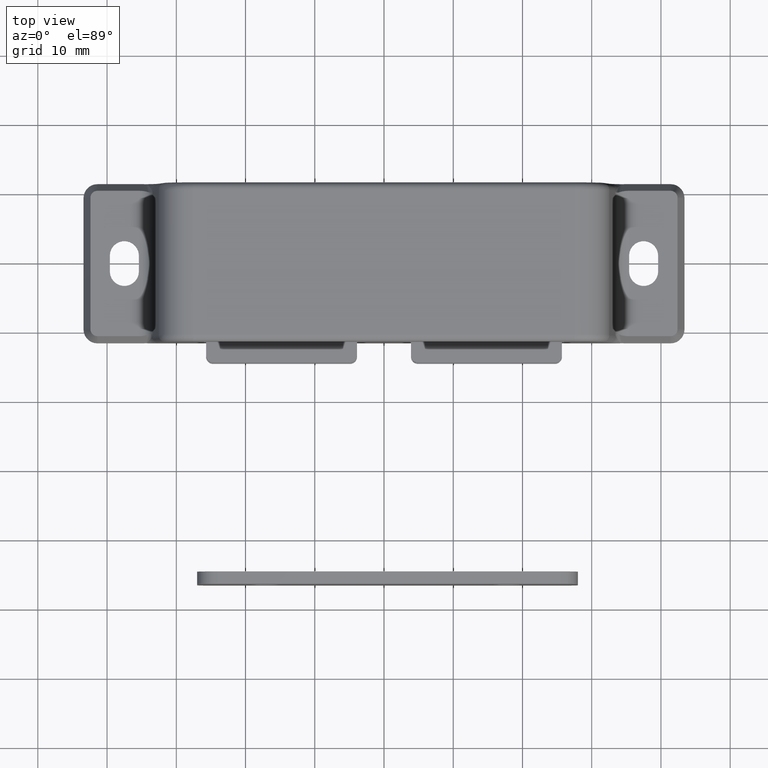
[diagram: clean part render]
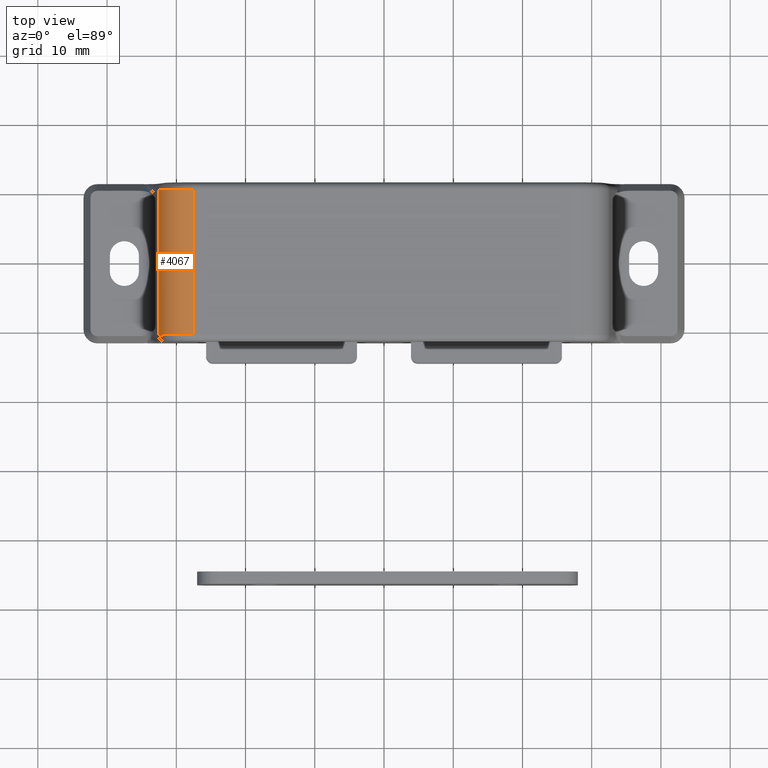
[diagram: same view with one face highlighted and labeled with its STEP entity id]
A machine part, top view. The second image highlights one B-rep face of the part: STEP entity #4067.
In plain terms, the highlighted cylindrical surface (edge-blend (fillet) strip) has radius 5 mm, axis along (0, 1, 0).
Its self-contained STEP definition (entity closure, byte-faithful):
#59=CYLINDRICAL_SURFACE('',#4335,5.);
#198=CIRCLE('',#4333,5.);
#200=CIRCLE('',#4336,5.);
#365=FACE_OUTER_BOUND('',#606,.T.);
#606=EDGE_LOOP('',(#2925,#2926,#2927,#2928));
#937=LINE('',#6295,#1373);
#938=LINE('',#6304,#1374);
#1373=VECTOR('',#4883,21.);
#1374=VECTOR('',#4896,21.);
#1797=VERTEX_POINT('',#6290);
#1798=VERTEX_POINT('',#6293);
#1799=VERTEX_POINT('',#6297);
#1800=VERTEX_POINT('',#6302);
#2230=EDGE_CURVE('',#1797,#1798,#937,.T.);
#2232=EDGE_CURVE('',#1799,#1798,#198,.T.);
#2234=EDGE_CURVE('',#1797,#1800,#200,.T.);
#2235=EDGE_CURVE('',#1799,#1800,#938,.T.);
#2925=ORIENTED_EDGE('',*,*,#2234,.F.);
#2926=ORIENTED_EDGE('',*,*,#2230,.T.);
#2927=ORIENTED_EDGE('',*,*,#2232,.F.);
#2928=ORIENTED_EDGE('',*,*,#2235,.T.);
#4067=ADVANCED_FACE('',(#365),#59,.T.);
#4333=AXIS2_PLACEMENT_3D('',#6299,#4888,#4889);
#4335=AXIS2_PLACEMENT_3D('',#6301,#4892,#4893);
#4336=AXIS2_PLACEMENT_3D('',#6303,#4894,#4895);
#4883=DIRECTION('',(0.,-1.,0.));
#4888=DIRECTION('center_axis',(0.,-1.,0.));
#4889=DIRECTION('ref_axis',(-0.662620048214059,0.,0.748955720790487));
#4892=DIRECTION('center_axis',(0.,1.,0.));
#4893=DIRECTION('ref_axis',(-0.662620048214059,0.,0.748955720790487));
#4894=DIRECTION('center_axis',(0.,1.,0.));
#4895=DIRECTION('ref_axis',(-0.662620048214059,0.,0.748955720790487));
#4896=DIRECTION('',(0.,1.,0.));
#6290=CARTESIAN_POINT('',(-32.5391044354106,10.5,11.209346717048));
#6293=CARTESIAN_POINT('',(-32.5391044354106,-10.5,11.209346717048));
#6295=CARTESIAN_POINT('',(-32.5391044354106,0.,11.209346717048));
#6297=CARTESIAN_POINT('',(-27.5763736772067,-10.5,15.6));
#6299=CARTESIAN_POINT('Origin',(-27.5763736772067,-10.5,10.6));
#6301=CARTESIAN_POINT('Origin',(-27.5763736772067,0.,10.6));
#6302=CARTESIAN_POINT('',(-27.5763736772067,10.5,15.6));
#6303=CARTESIAN_POINT('Origin',(-27.5763736772067,10.5,10.6));
#6304=CARTESIAN_POINT('',(-27.5763736772067,0.,15.6));